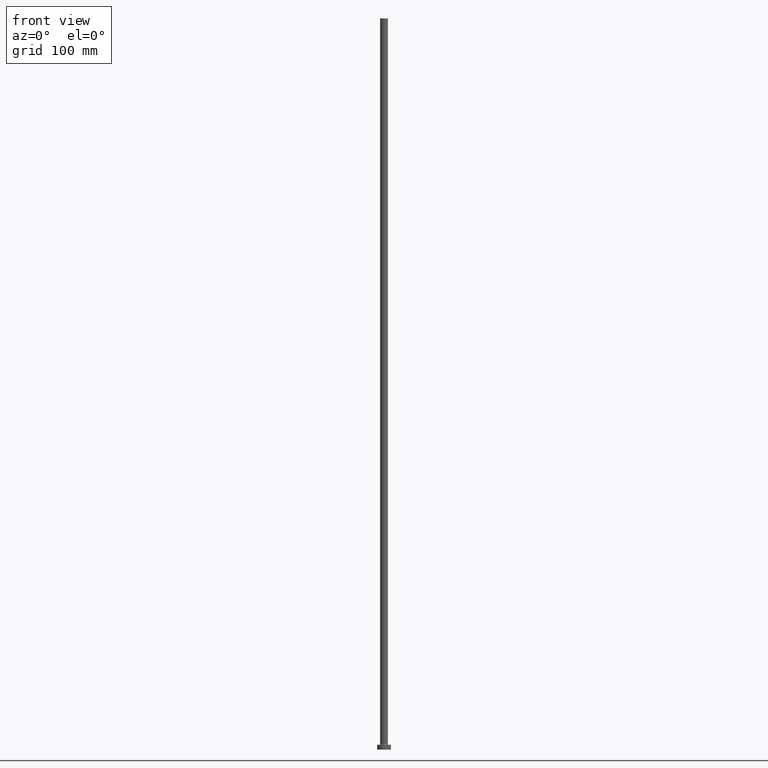
[diagram: clean part render]
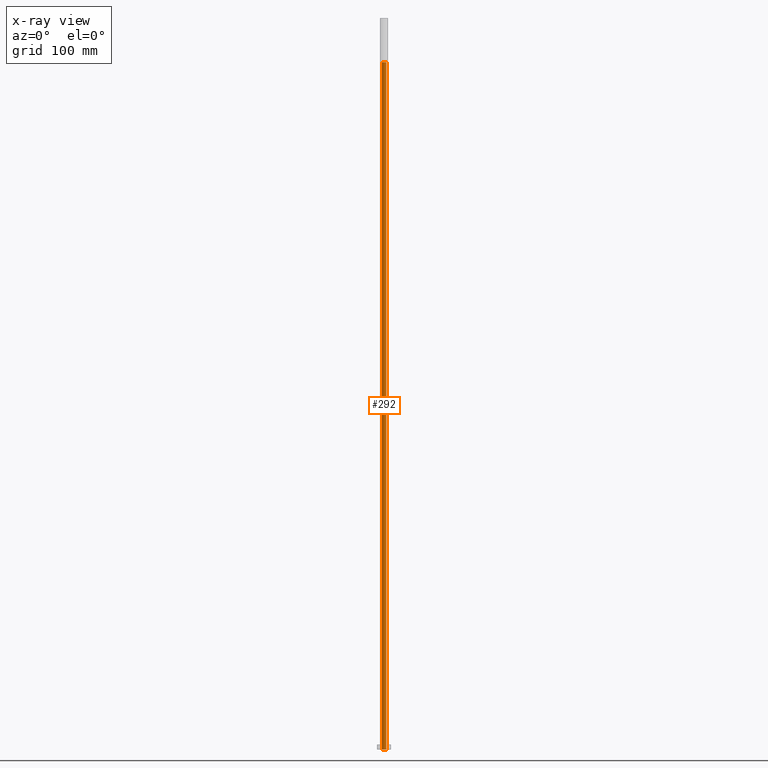
[diagram: x-ray — body ghosted, one internal face saturated and labeled with its STEP entity id]
A machine part, front view, then the same camera in x-ray: the body is ghosted and one INTERNAL B-rep face — a face not visible from any outside direction — is saturated and labeled: STEP entity #292.
In plain terms, the highlighted cylindrical surface (edge-blend (fillet) strip) has radius 2.25 mm, axis along (0, 0, -1).
Its self-contained STEP definition (entity closure, byte-faithful):
#8 = AXIS2_PLACEMENT_3D ( 'NONE', #406, #13, #397 ) ;
#9 = VERTEX_POINT ( 'NONE', #180 ) ;
#13 = DIRECTION ( 'NONE',  ( 0.000000000000000000, 0.000000000000000000, -1.000000000000000000 ) ) ;
#24 = AXIS2_PLACEMENT_3D ( 'NONE', #156, #441, #243 ) ;
#31 = LINE ( 'NONE', #170, #261 ) ;
#37 = CIRCLE ( 'NONE', #305, 2.250000000000000000 ) ;
#50 = VECTOR ( 'NONE', #270, 1000.000000000000000 ) ;
#60 = VERTEX_POINT ( 'NONE', #402 ) ;
#86 = LINE ( 'NONE', #433, #50 ) ;
#125 = CARTESIAN_POINT ( 'NONE',  ( 0.000000000000000000, 0.000000000000000000, 0.000000000000000000 ) ) ;
#149 = EDGE_CURVE ( 'NONE', #330, #9, #226, .T. ) ;
#156 = CARTESIAN_POINT ( 'NONE',  ( 0.000000000000000000, 0.000000000000000000, 705.0000000000000000 ) ) ;
#170 = CARTESIAN_POINT ( 'NONE',  ( -2.250000000000000000, 0.000000000000000000, 711.3639610306788654 ) ) ;
#180 = CARTESIAN_POINT ( 'NONE',  ( 2.250000000000000000, 2.755455298081543792E-16, 705.0000000000000000 ) ) ;
#181 = EDGE_CURVE ( 'NONE', #330, #60, #31, .T. ) ;
#199 = ORIENTED_EDGE ( 'NONE', *, *, #181, .F. ) ;
#212 = CARTESIAN_POINT ( 'NONE',  ( 2.250000000000000000, 2.755455298081543792E-16, 0.000000000000000000 ) ) ;
#220 = ORIENTED_EDGE ( 'NONE', *, *, #149, .T. ) ;
#226 = CIRCLE ( 'NONE', #24, 2.250000000000000000 ) ;
#238 = FACE_OUTER_BOUND ( 'NONE', #349, .T. ) ;
#243 = DIRECTION ( 'NONE',  ( 1.000000000000000000, 0.000000000000000000, 0.000000000000000000 ) ) ;
#260 = CYLINDRICAL_SURFACE ( 'NONE', #8, 2.250000000000000000 ) ;
#261 = VECTOR ( 'NONE', #308, 1000.000000000000000 ) ;
#270 = DIRECTION ( 'NONE',  ( 0.000000000000000000, 0.000000000000000000, -1.000000000000000000 ) ) ;
#292 = ADVANCED_FACE ( 'NONE', ( #238 ), #260, .F. ) ;
#305 = AXIS2_PLACEMENT_3D ( 'NONE', #125, #416, #413 ) ;
#306 = EDGE_CURVE ( 'NONE', #9, #368, #86, .T. ) ;
#308 = DIRECTION ( 'NONE',  ( 0.000000000000000000, 0.000000000000000000, -1.000000000000000000 ) ) ;
#330 = VERTEX_POINT ( 'NONE', #369 ) ;
#349 = EDGE_LOOP ( 'NONE', ( #220, #387, #445, #199 ) ) ;
#368 = VERTEX_POINT ( 'NONE', #212 ) ;
#369 = CARTESIAN_POINT ( 'NONE',  ( -2.250000000000000000, 0.000000000000000000, 705.0000000000000000 ) ) ;
#387 = ORIENTED_EDGE ( 'NONE', *, *, #306, .T. ) ;
#397 = DIRECTION ( 'NONE',  ( -1.000000000000000000, 0.000000000000000000, 0.000000000000000000 ) ) ;
#402 = CARTESIAN_POINT ( 'NONE',  ( -2.250000000000000000, 0.000000000000000000, 0.000000000000000000 ) ) ;
#406 = CARTESIAN_POINT ( 'NONE',  ( 0.000000000000000000, 0.000000000000000000, 711.3639610306788654 ) ) ;
#411 = EDGE_CURVE ( 'NONE', #368, #60, #37, .T. ) ;
#413 = DIRECTION ( 'NONE',  ( 1.000000000000000000, 0.000000000000000000, 0.000000000000000000 ) ) ;
#416 = DIRECTION ( 'NONE',  ( -0.000000000000000000, -0.000000000000000000, -1.000000000000000000 ) ) ;
#433 = CARTESIAN_POINT ( 'NONE',  ( 2.250000000000000000, 2.755455298081543792E-16, 711.3639610306788654 ) ) ;
#441 = DIRECTION ( 'NONE',  ( 0.000000000000000000, 0.000000000000000000, 1.000000000000000000 ) ) ;
#445 = ORIENTED_EDGE ( 'NONE', *, *, #411, .T. ) ;